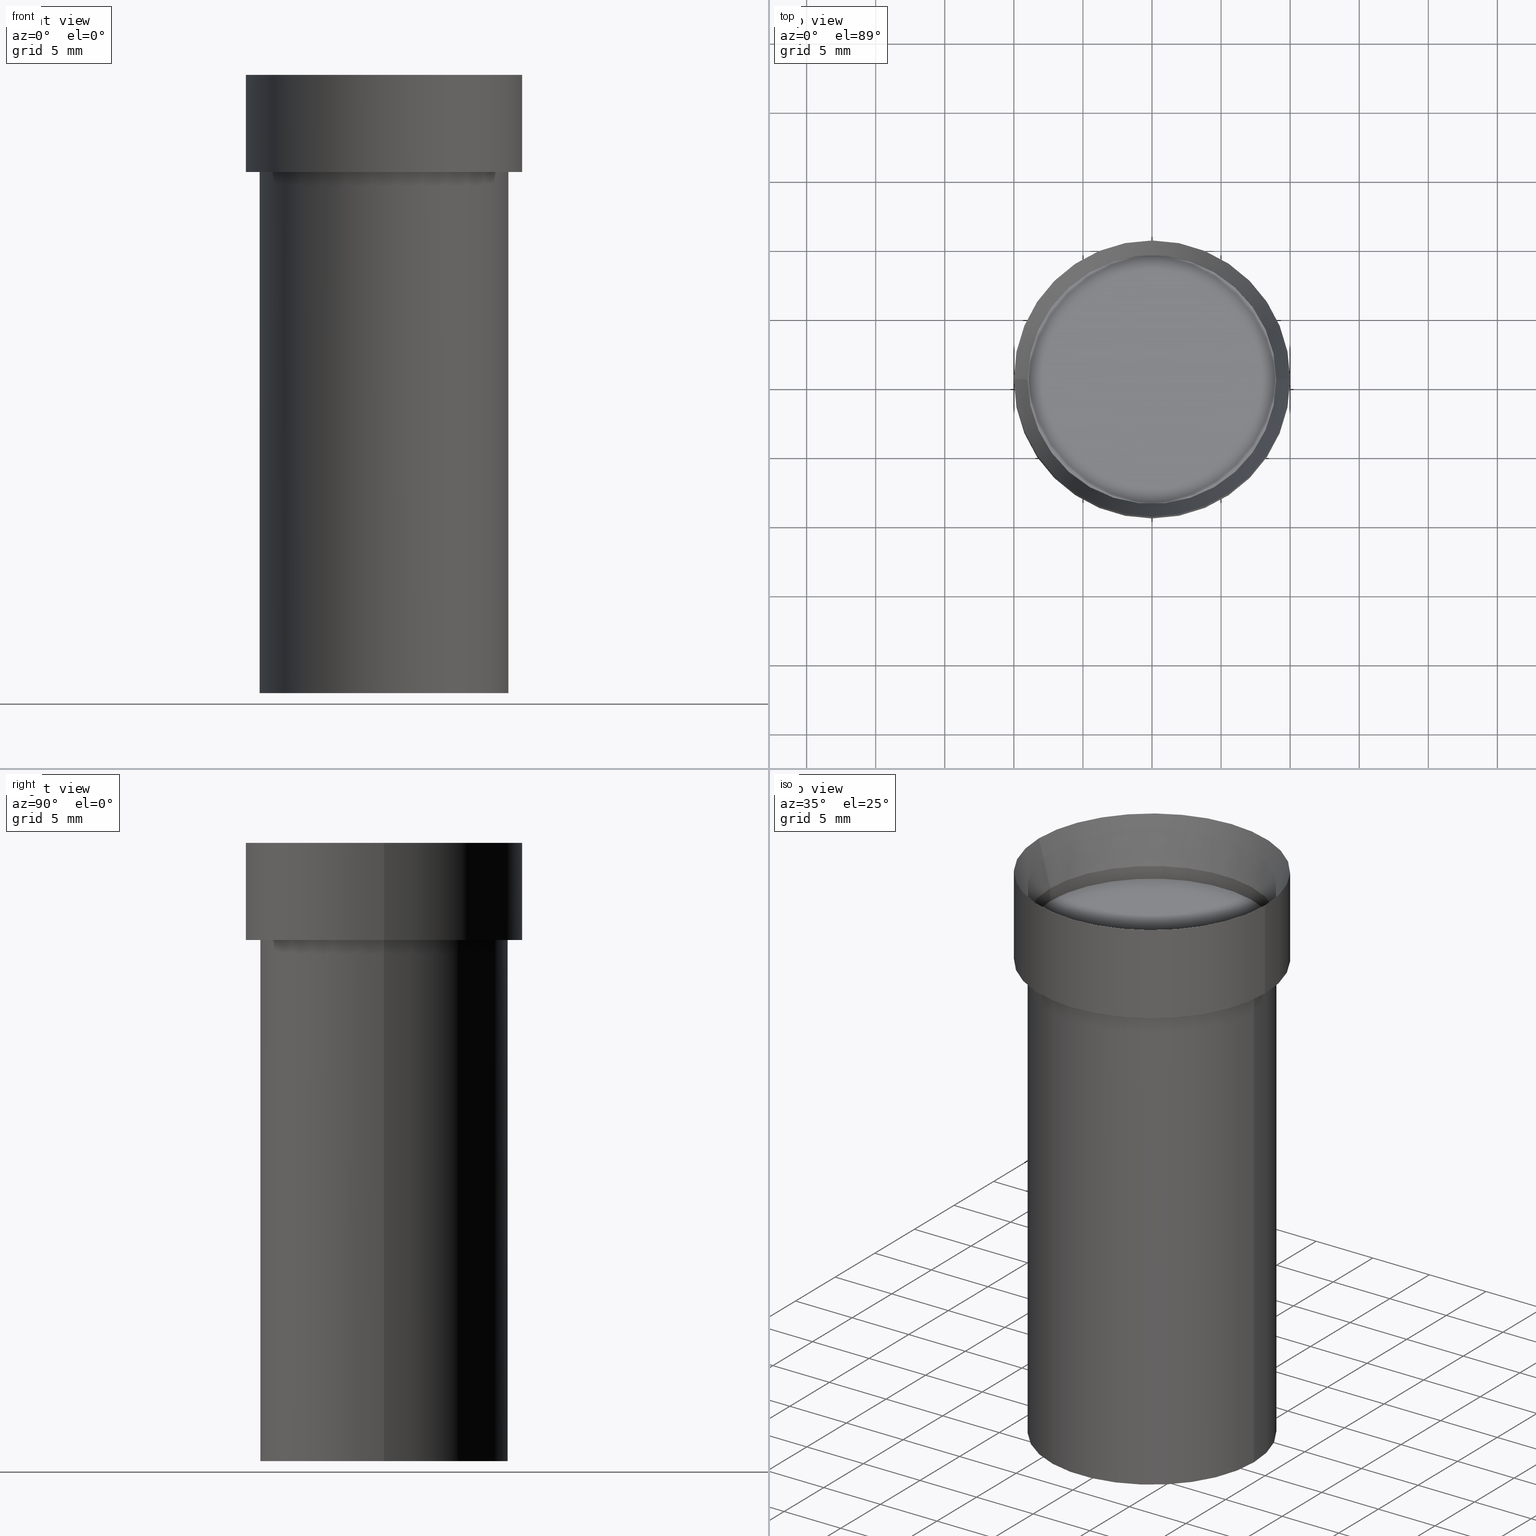
[diagram: canonical four-view strip — front | top / right | iso, engineering-drawing reading convention]
A machine part, canonical four-view strip (front | top / right | iso — engineering-drawing reading convention). The complete STEP part file that produces these views, byte-faithful:
ISO-10303-21;
HEADER;
FILE_DESCRIPTION (( 'STEP AP203' ),
    '1' );
FILE_NAME ('43928.STEP',
    '2024-03-12T19:20:00',
    ( '' ),
    ( '' ),
    'SwSTEP 2.0',
    'SolidWorks 2023',
    '' );
FILE_SCHEMA (( 'CONFIG_CONTROL_DESIGN' ));
ENDSEC;

DATA;
#1 = DIRECTION ( 'NONE',  ( 2.445468806185136597E-29, -3.491481338843145583E-15, -1.000000000000000000 ) ) ;
#2 = DIRECTION ( 'NONE',  ( 1.000000000000000000, -6.982962677686265922E-15, 4.876176775795935793E-29 ) ) ;
#3 = ADVANCED_FACE ( 'NONE', ( #232 ), #231, .T. ) ;
#4 = FACE_OUTER_BOUND ( 'NONE', #432, .T. ) ;
#5 = DIRECTION ( 'NONE',  ( 2.445468806185136597E-29, -3.491481338843145583E-15, -1.000000000000000000 ) ) ;
#6 = DIRECTION ( 'NONE',  ( 2.445468806185136877E-29, -3.491481338843145188E-15, -1.000000000000000000 ) ) ;
#7 = AXIS2_PLACEMENT_3D ( 'NONE', #323, #282, #431 ) ;
#8 = VECTOR ( 'NONE', #206, 39.37007874015748854 ) ;
#9 = ORIENTED_EDGE ( 'NONE', *, *, #240, .T. ) ;
#10 = CARTESIAN_POINT ( 'NONE',  ( -0.3936999999999999389, 3.711672783926467705E-15, 0.2618561992778351555 ) ) ;
#11 = CARTESIAN_POINT ( 'NONE',  ( -1.841438011057409467E-30, 2.629085448148890871E-16, 0.07530000000000006133 ) ) ;
#12 = EDGE_CURVE ( 'NONE', #397, #268, #452, .T. ) ;
#13 = ORIENTED_EDGE ( 'NONE', *, *, #266, .T. ) ;
#14 = AXIS2_PLACEMENT_3D ( 'NONE', #458, #419, #101 ) ;
#15 = AXIS2_PLACEMENT_3D ( 'NONE', #82, #5, #352 ) ;
#16 = EDGE_LOOP ( 'NONE', ( #79, #155, #466, #400 ) ) ;
#17 = DIRECTION ( 'NONE',  ( 1.000000000000000000, -6.982962677686266711E-15, 0.000000000000000000 ) ) ;
#18 = CIRCLE ( 'NONE', #15, 0.3937000000000000499 ) ;
#19 = CALENDAR_DATE ( 2024, 12, 3 ) ;
#20 = CARTESIAN_POINT ( 'NONE',  ( 2.644447966039789453E-15, 0.3787000000000000366, -1.429674279493083145E-15 ) ) ;
#21 = DIRECTION ( 'NONE',  ( -1.000000000000000000, 6.982962677686266711E-15, -4.876176775795935793E-29 ) ) ;
#22 = DIRECTION ( 'NONE',  ( 2.445468806185136597E-29, -3.491481338843145583E-15, -1.000000000000000000 ) ) ;
#23 = AXIS2_PLACEMENT_3D ( 'NONE', #245, #424, #172 ) ;
#24 = AXIS2_PLACEMENT_3D ( 'NONE', #234, #391, #146 ) ;
#25 = CYLINDRICAL_SURFACE ( 'NONE', #180, 0.3543499999999999983 ) ;
#26 = LINE ( 'NONE', #67, #31 ) ;
#27 = ADVANCED_FACE ( 'NONE', ( #94 ), #372, .T. ) ;
#28 = DIRECTION ( 'NONE',  ( -2.445468806185136597E-29, 3.491481338843145583E-15, 1.000000000000000000 ) ) ;
#29 = LINE ( 'NONE', #173, #140 ) ;
#30 = ORIENTED_EDGE ( 'NONE', *, *, #235, .T. ) ;
#31 = VECTOR ( 'NONE', #171, 39.37007874015748143 ) ;
#32 = LINE ( 'NONE', #464, #203 ) ;
#33 = APPROVAL_PERSON_ORGANIZATION ( #249, #463, #47 ) ;
#34 = ADVANCED_FACE ( 'NONE', ( #115 ), #392, .T. ) ;
#35 = VERTEX_POINT ( 'NONE', #238 ) ;
#36 = EDGE_CURVE ( 'NONE', #222, #124, #26, .T. ) ;
#37 = FACE_OUTER_BOUND ( 'NONE', #259, .T. ) ;
#38 = DIRECTION ( 'NONE',  ( 2.445468806185136597E-29, -3.491481338843145583E-15, -1.000000000000000000 ) ) ;
#39 = DIRECTION ( 'NONE',  ( -1.000000000000000000, 6.982962677686266711E-15, 0.000000000000000000 ) ) ;
#40 = VERTEX_POINT ( 'NONE', #430 ) ;
#41 = ORIENTED_EDGE ( 'NONE', *, *, #393, .T. ) ;
#42 = CARTESIAN_POINT ( 'NONE',  ( -1.829210667026483904E-30, 2.611628041454674849E-16, 0.07480000000000006088 ) ) ;
#43 = ORIENTED_EDGE ( 'NONE', *, *, #450, .T. ) ;
#44 = DIRECTION ( 'NONE',  ( -2.445468806185136597E-29, 3.491481338843145583E-15, 1.000000000000000000 ) ) ;
#45 = ORIENTED_EDGE ( 'NONE', *, *, #223, .T. ) ;
#46 = ORIENTED_EDGE ( 'NONE', *, *, #235, .F. ) ;
#47 = APPROVAL_ROLE ( '' ) ;
#48 = CARTESIAN_POINT ( 'NONE',  ( -6.403611670401447787E-30, 9.142660332389533129E-16, 0.2618561992778351555 ) ) ;
#49 = VECTOR ( 'NONE', #364, 39.37007874015748854 ) ;
#50 = EDGE_CURVE ( 'NONE', #209, #52, #127, .T. ) ;
#51 = CONICAL_SURFACE ( 'NONE', #24, 0.3787000000000000366, 0.7853981633974547183 ) ;
#52 = VERTEX_POINT ( 'NONE', #196 ) ;
#53 = CC_DESIGN_PERSON_AND_ORGANIZATION_ASSIGNMENT ( #106, #118, ( #444 ) ) ;
#54 = PERSON_AND_ORGANIZATION ( #314, #128 ) ;
#55 = ORIENTED_EDGE ( 'NONE', *, *, #207, .F. ) ;
#56 = APPROVAL_STATUS ( 'not_yet_approved' ) ;
#57 = PERSON_AND_ORGANIZATION_ROLE ( 'creator' ) ;
#58 = CARTESIAN_POINT ( 'NONE',  ( -2.812289127112907395E-30, 4.015203539669618446E-16, 0.1150000000000000189 ) ) ;
#59 = AXIS2_PLACEMENT_3D ( 'NONE', #312, #142, #143 ) ;
#60 = PERSON_AND_ORGANIZATION ( #314, #128 ) ;
#61 = DIRECTION ( 'NONE',  ( 2.445468806185136597E-29, -3.491481338843145583E-15, -1.000000000000000000 ) ) ;
#62 = CARTESIAN_POINT ( 'NONE',  ( 0.000000000000000000, 0.000000000000000000, 0.000000000000000000 ) ) ;
#63 = ORIENTED_EDGE ( 'NONE', *, *, #276, .T. ) ;
#64 = AXIS2_PLACEMENT_3D ( 'NONE', #342, #22, #137 ) ;
#65 = AXIS2_PLACEMENT_3D ( 'NONE', #355, #38, #112 ) ;
#66 = CYLINDRICAL_SURFACE ( 'NONE', #278, 0.3543499999999999983 ) ;
#67 = CARTESIAN_POINT ( 'NONE',  ( 0.3543499999999999983, -2.431017465510342392E-15, 1.712721831774753992E-29 ) ) ;
#68 = ORIENTED_EDGE ( 'NONE', *, *, #12, .T. ) ;
#69 = DIRECTION ( 'NONE',  ( 0.2588190451025211836, 1.565188264969622559E-15, 0.9659258262890679791 ) ) ;
#70 = CARTESIAN_POINT ( 'NONE',  ( -2.812289127112907395E-30, 4.015203539669618446E-16, 0.1150000000000000189 ) ) ;
#71 = PRODUCT_DEFINITION_SHAPE ( 'NONE', 'NONE',  #302 ) ;
#72 = CARTESIAN_POINT ( 'NONE',  ( 3.668203209277704895E-29, -5.237222008264718177E-15, -1.500000000000000222 ) ) ;
#73 = EDGE_CURVE ( 'NONE', #139, #404, #277, .T. ) ;
#74 = VERTEX_POINT ( 'NONE', #385 ) ;
#75 = AXIS2_PLACEMENT_3D ( 'NONE', #62, #376, #263 ) ;
#76 = CARTESIAN_POINT ( 'NONE',  ( 5.255326964810316247E-45, -7.503214099785695689E-31, -2.149005929463676427E-16 ) ) ;
#77 = ORIENTED_EDGE ( 'NONE', *, *, #266, .F. ) ;
#78 = CYLINDRICAL_SURFACE ( 'NONE', #65, 0.3936999999999999389 ) ;
#79 = ORIENTED_EDGE ( 'NONE', *, *, #50, .T. ) ;
#80 = CARTESIAN_POINT ( 'NONE',  ( -0.3936999999999999389, 3.711672783926467705E-15, 0.2618561992778351555 ) ) ;
#81 = EDGE_CURVE ( 'NONE', #222, #139, #337, .T. ) ;
#82 = CARTESIAN_POINT ( 'NONE',  ( 3.668203209277705088E-31, -5.237222008264718399E-17, -0.01499999999999999944 ) ) ;
#83 = CALENDAR_DATE ( 2024, 12, 3 ) ;
#84 = EDGE_CURVE ( 'NONE', #437, #295, #29, .T. ) ;
#85 = AXIS2_PLACEMENT_3D ( 'NONE', #211, #28, #386 ) ;
#86 = ORIENTED_EDGE ( 'NONE', *, *, #393, .F. ) ;
#87 = DIRECTION ( 'NONE',  ( -1.000000000000000000, 6.982962677686265922E-15, -4.876176775795935793E-29 ) ) ;
#88 = ORIENTED_EDGE ( 'NONE', *, *, #224, .F. ) ;
#89 = ADVANCED_FACE ( 'NONE', ( #190 ), #25, .T. ) ;
#90 = CC_DESIGN_PERSON_AND_ORGANIZATION_ASSIGNMENT ( #160, #304, ( #275 ) ) ;
#91 = CIRCLE ( 'NONE', #408, 0.3543500000000000538 ) ;
#92 = DATE_TIME_ROLE ( 'creation_date' ) ;
#93 = CARTESIAN_POINT ( 'NONE',  ( 0.3543499999999999983, -4.919047067569968280E-15, -1.500000000000000222 ) ) ;
#94 = FACE_OUTER_BOUND ( 'NONE', #288, .T. ) ;
#95 = ORIENTED_EDGE ( 'NONE', *, *, #81, .T. ) ;
#96 = DATE_AND_TIME ( #226, #369 ) ;
#97 = APPROVAL ( #365, 'UNSPECIFIED' ) ;
#98 = DESIGN_CONTEXT ( 'detailed design', #262, 'design' ) ;
#99 = CONICAL_SURFACE ( 'NONE', #85, 0.3543500000000000538, 0.7853981633974824739 ) ;
#100 = DATE_AND_TIME ( #19, #425 ) ;
#101 = DIRECTION ( 'NONE',  ( -1.000000000000000000, 6.982962677686266711E-15, 0.000000000000000000 ) ) ;
#102 = ORIENTED_EDGE ( 'NONE', *, *, #12, .F. ) ;
#103 = FACE_OUTER_BOUND ( 'NONE', #421, .T. ) ;
#104 = DIRECTION ( 'NONE',  ( -2.438088387897960049E-29, 3.491481338843145188E-15, 1.000000000000000000 ) ) ;
#105 = AXIS2_PLACEMENT_3D ( 'NONE', #438, #109, #317 ) ;
#106 = PERSON_AND_ORGANIZATION ( #314, #128 ) ;
#107 = CARTESIAN_POINT ( 'NONE',  ( -0.3787000000000000366, 2.644447966039788269E-15, -2.149005929463861069E-16 ) ) ;
#108 = CARTESIAN_POINT ( 'NONE',  ( -0.3543499999999999983, 2.474412824838128694E-15, -1.727873240503289749E-29 ) ) ;
#109 = DIRECTION ( 'NONE',  ( 2.445468806185136597E-29, -3.491481338843145583E-15, -1.000000000000000000 ) ) ;
#110 = ORIENTED_EDGE ( 'NONE', *, *, #149, .T. ) ;
#111 = DIRECTION ( 'NONE',  ( 2.445468806185136597E-29, -3.491481338843145583E-15, -1.000000000000000000 ) ) ;
#112 = DIRECTION ( 'NONE',  ( -1.000000000000000000, 6.982962677686266711E-15, -4.876176775795935793E-29 ) ) ;
#113 = AXIS2_PLACEMENT_3D ( 'NONE', #58, #305, #132 ) ;
#114 = LINE ( 'NONE', #447, #313 ) ;
#115 = FACE_OUTER_BOUND ( 'NONE', #371, .T. ) ;
#116 = CARTESIAN_POINT ( 'NONE',  ( 5.255326964810316247E-45, -7.503214099785695689E-31, -2.149005929463676427E-16 ) ) ;
#117 = FACE_OUTER_BOUND ( 'NONE', #122, .T. ) ;
#118 = PERSON_AND_ORGANIZATION_ROLE ( 'classification_officer' ) ;
#119 = DIRECTION ( 'NONE',  ( 1.000000000000000000, -6.982962677686266711E-15, 0.000000000000000000 ) ) ;
#120 = SHAPE_DEFINITION_REPRESENTATION ( #71, #349 ) ;
#121 = CONICAL_SURFACE ( 'NONE', #105, 0.3787000000000000366, 0.7853981633974547183 ) ;
#122 = EDGE_LOOP ( 'NONE', ( #86, #255, #9, #215 ) ) ;
#123 = ORIENTED_EDGE ( 'NONE', *, *, #149, .F. ) ;
#124 = VERTEX_POINT ( 'NONE', #381 ) ;
#125 = UNCERTAINTY_MEASURE_WITH_UNIT (LENGTH_MEASURE( 1.000000000000000082E-05 ), #411, 'distance_accuracy_value', 'NONE');
#126 =( NAMED_UNIT ( * ) PLANE_ANGLE_UNIT ( ) SI_UNIT ( $, .RADIAN. ) );
#127 = CIRCLE ( 'NONE', #286, 0.3543499999999999983 ) ;
#128 = ORGANIZATION ( 'UNSPECIFIED', 'UNSPECIFIED', '' ) ;
#129 = ORIENTED_EDGE ( 'NONE', *, *, #207, .T. ) ;
#130 = APPROVAL ( #56, 'UNSPECIFIED' ) ;
#131 =( NAMED_UNIT ( * ) SI_UNIT ( $, .STERADIAN. ) SOLID_ANGLE_UNIT ( ) );
#132 = DIRECTION ( 'NONE',  ( -1.000000000000000000, 6.982962677686266711E-15, 0.000000000000000000 ) ) ;
#133 = DIRECTION ( 'NONE',  ( 1.000000000000000000, 0.000000000000000000, 0.000000000000000000 ) ) ;
#134 = DIRECTION ( 'NONE',  ( 2.445468806185136597E-29, -3.491481338843145583E-15, -1.000000000000000000 ) ) ;
#135 = AXIS2_PLACEMENT_3D ( 'NONE', #318, #285, #2 ) ;
#136 = CONICAL_SURFACE ( 'NONE', #389, 0.3936999999999999389, 0.2617993877991499074 ) ;
#137 = DIRECTION ( 'NONE',  ( -1.000000000000000000, 6.982962677686266711E-15, 0.000000000000000000 ) ) ;
#138 = CARTESIAN_POINT ( 'NONE',  ( -0.3936999999999999389, 2.749192406205082822E-15, -1.919750796630859611E-29 ) ) ;
#139 = VERTEX_POINT ( 'NONE', #375 ) ;
#140 = VECTOR ( 'NONE', #465, 39.37007874015748143 ) ;
#141 = LOCAL_TIME ( 15, 20, 0.000000000000000000, #327 ) ;
#142 = DIRECTION ( 'NONE',  ( -2.445468806185136597E-29, 3.491481338843145583E-15, 1.000000000000000000 ) ) ;
#143 = DIRECTION ( 'NONE',  ( 1.000000000000000000, -6.982962677686266711E-15, 0.000000000000000000 ) ) ;
#144 = ORIENTED_EDGE ( 'NONE', *, *, #199, .T. ) ;
#145 = DIRECTION ( 'NONE',  ( -0.7071067811865521247, 2.468850131082304787E-15, -0.7071067811865430208 ) ) ;
#146 = DIRECTION ( 'NONE',  ( -1.000000000000000000, 6.982962677686266711E-15, -4.877404199330184597E-29 ) ) ;
#147 = AXIS2_PLACEMENT_3D ( 'NONE', #42, #174, #177 ) ;
#148 = DIRECTION ( 'NONE',  ( 2.445468806185136597E-29, -3.491481338843145583E-15, -1.000000000000000000 ) ) ;
#149 = EDGE_CURVE ( 'NONE', #139, #222, #213, .T. ) ;
#150 = DIRECTION ( 'NONE',  ( -1.000000000000000000, 6.982962677686266711E-15, -4.877404199330184597E-29 ) ) ;
#151 = DIRECTION ( 'NONE',  ( -1.000000000000000000, 6.982962677686265922E-15, 0.000000000000000000 ) ) ;
#152 = DATE_TIME_ROLE ( 'classification_date' ) ;
#153 = ORIENTED_EDGE ( 'NONE', *, *, #329, .F. ) ;
#154 = ADVANCED_FACE ( 'NONE', ( #338 ), #456, .T. ) ;
#155 = ORIENTED_EDGE ( 'NONE', *, *, #410, .T. ) ;
#156 = CIRCLE ( 'NONE', #23, 0.3936999999999999389 ) ;
#157 = ORIENTED_EDGE ( 'NONE', *, *, #324, .T. ) ;
#158 = ORIENTED_EDGE ( 'NONE', *, *, #410, .F. ) ;
#159 = CARTESIAN_POINT ( 'NONE',  ( -0.3543500000000000538, 2.737321369653018176E-15, 0.07530000000000006133 ) ) ;
#160 = PERSON_AND_ORGANIZATION ( #314, #128 ) ;
#161 = CIRCLE ( 'NONE', #414, 0.3543499999999999983 ) ;
#162 = APPROVAL_PERSON_ORGANIZATION ( #54, #130, #415 ) ;
#163 = APPLICATION_PROTOCOL_DEFINITION ( 'international standard', 'config_control_design', 1994, #183 ) ;
#164 = CARTESIAN_POINT ( 'NONE',  ( 0.000000000000000000, 0.000000000000000000, 0.000000000000000000 ) ) ;
#165 = EDGE_CURVE ( 'NONE', #427, #298, #168, .T. ) ;
#166 = ADVANCED_FACE ( 'NONE', ( #274 ), #412, .F. ) ;
#167 = ADVANCED_FACE ( 'NONE', ( #420 ), #271, .T. ) ;
#168 = LINE ( 'NONE', #138, #453 ) ;
#169 = AXIS2_PLACEMENT_3D ( 'NONE', #76, #205, #433 ) ;
#170 = ORIENTED_EDGE ( 'NONE', *, *, #329, .T. ) ;
#171 = DIRECTION ( 'NONE',  ( 2.445468806185136877E-29, -3.491481338843145188E-15, -1.000000000000000000 ) ) ;
#172 = DIRECTION ( 'NONE',  ( -1.000000000000000000, 6.982962677686266711E-15, 0.000000000000000000 ) ) ;
#173 = CARTESIAN_POINT ( 'NONE',  ( 0.3936999999999999389, -2.700978061722651647E-15, 1.902916848228363047E-29 ) ) ;
#174 = DIRECTION ( 'NONE',  ( 2.445468806185136597E-29, -3.491481338843145583E-15, -1.000000000000000000 ) ) ;
#175 = CARTESIAN_POINT ( 'NONE',  ( 0.3936999999999999389, -1.834926372966129509E-15, 0.2618561992778351555 ) ) ;
#176 = CARTESIAN_POINT ( 'NONE',  ( -0.3543499999999999983, -2.762809183426589877E-15, -1.500000000000000222 ) ) ;
#177 = DIRECTION ( 'NONE',  ( -1.000000000000000000, 6.982962677686265922E-15, 0.000000000000000000 ) ) ;
#178 = ORIENTED_EDGE ( 'NONE', *, *, #276, .F. ) ;
#179 = CLOSED_SHELL ( 'NONE', ( #167, #290, #359, #194, #380, #319, #166, #246, #27, #154, #417, #451 ) ) ;
#180 = AXIS2_PLACEMENT_3D ( 'NONE', #192, #379, #237 ) ;
#181 = APPROVAL_PERSON_ORGANIZATION ( #299, #97, #448 ) ;
#182 = CARTESIAN_POINT ( 'NONE',  ( -0.3937000000000000499, 2.696820186122435743E-15, -0.01499999999999999944 ) ) ;
#183 = APPLICATION_CONTEXT ( 'configuration controlled 3d designs of mechanical parts and assemblies' ) ;
#184 = VECTOR ( 'NONE', #242, 39.37007874015748143 ) ;
#185 = DIRECTION ( 'NONE',  ( -2.445468806185136597E-29, 3.491481338843145583E-15, 1.000000000000000000 ) ) ;
#186 = ORIENTED_EDGE ( 'NONE', *, *, #208, .F. ) ;
#187 = MECHANICAL_CONTEXT ( 'NONE', #183, 'mechanical' ) ;
#188 = COORDINATED_UNIVERSAL_TIME_OFFSET ( 5, 0, .BEHIND. ) ;
#189 = VECTOR ( 'NONE', #145, 39.37007874015748143 ) ;
#190 = FACE_OUTER_BOUND ( 'NONE', #16, .T. ) ;
#191 = CC_DESIGN_PERSON_AND_ORGANIZATION_ASSIGNMENT ( #409, #57, ( #302 ) ) ;
#192 = CARTESIAN_POINT ( 'NONE',  ( 0.000000000000000000, 0.000000000000000000, 0.000000000000000000 ) ) ;
#193 = AXIS2_PLACEMENT_3D ( 'NONE', #418, #61, #21 ) ;
#194 = ADVANCED_FACE ( 'NONE', ( #103 ), #66, .F. ) ;
#195 = DIRECTION ( 'NONE',  ( -1.000000000000000000, 6.982962677686266711E-15, -4.876176775795935793E-29 ) ) ;
#196 = CARTESIAN_POINT ( 'NONE',  ( 0.3543499999999999983, -4.919047067569968280E-15, 0.07479999999999997762 ) ) ;
#197 = EDGE_LOOP ( 'NONE', ( #387, #123, #363, #328 ) ) ;
#198 = DIRECTION ( 'NONE',  ( 2.445468806185136597E-29, -3.491481338843145583E-15, -1.000000000000000000 ) ) ;
#199 = EDGE_CURVE ( 'NONE', #124, #404, #345, .T. ) ;
#200 = DIRECTION ( 'NONE',  ( 2.445468806185136597E-29, -3.491481338843145583E-15, -1.000000000000000000 ) ) ;
#201 = DIRECTION ( 'NONE',  ( 2.445468806185136597E-29, -3.491481338843145583E-15, -1.000000000000000000 ) ) ;
#202 = EDGE_LOOP ( 'NONE', ( #446, #41, #331, #462 ) ) ;
#203 = VECTOR ( 'NONE', #69, 39.37007874015748854 ) ;
#204 = LOCAL_TIME ( 15, 20, 0.000000000000000000, #398 ) ;
#205 = DIRECTION ( 'NONE',  ( 2.445468806185136597E-29, -3.491481338843145583E-15, -1.000000000000000000 ) ) ;
#206 = DIRECTION ( 'NONE',  ( -0.2588190451025211836, 5.211531920934547886E-15, 0.9659258262890679791 ) ) ;
#207 = EDGE_CURVE ( 'NONE', #437, #427, #306, .T. ) ;
#208 = EDGE_CURVE ( 'NONE', #52, #209, #261, .T. ) ;
#209 = VERTEX_POINT ( 'NONE', #279 ) ;
#210 = ORIENTED_EDGE ( 'NONE', *, *, #208, .T. ) ;
#211 = CARTESIAN_POINT ( 'NONE',  ( -1.841438011057409467E-30, 2.629085448148890871E-16, 0.07530000000000006133 ) ) ;
#212 = APPROVAL_STATUS ( 'not_yet_approved' ) ;
#213 = CIRCLE ( 'NONE', #113, 0.3543499999999999428 ) ;
#214 = EDGE_CURVE ( 'NONE', #404, #124, #91, .T. ) ;
#215 = ORIENTED_EDGE ( 'NONE', *, *, #214, .F. ) ;
#216 = CALENDAR_DATE ( 2024, 12, 3 ) ;
#217 = ORIENTED_EDGE ( 'NONE', *, *, #227, .F. ) ;
#218 = FACE_OUTER_BOUND ( 'NONE', #325, .T. ) ;
#219 = ORIENTED_EDGE ( 'NONE', *, *, #165, .T. ) ;
#220 = AXIS2_PLACEMENT_3D ( 'NONE', #366, #449, #87 ) ;
#221 = CC_DESIGN_SECURITY_CLASSIFICATION ( #444, ( #239 ) ) ;
#222 = VERTEX_POINT ( 'NONE', #354 ) ;
#223 = EDGE_CURVE ( 'NONE', #209, #268, #384, .T. ) ;
#224 = EDGE_CURVE ( 'NONE', #222, #437, #32, .T. ) ;
#225 = ORIENTED_EDGE ( 'NONE', *, *, #50, .F. ) ;
#226 = CALENDAR_DATE ( 2024, 12, 3 ) ;
#227 = EDGE_CURVE ( 'NONE', #236, #40, #361, .T. ) ;
#228 = APPROVAL_DATE_TIME ( #100, #130 ) ;
#229 = DIRECTION ( 'NONE',  ( -1.000000000000000000, 6.982962677686266711E-15, -4.876176775795935793E-29 ) ) ;
#230 = AXIS2_PLACEMENT_3D ( 'NONE', #70, #200, #351 ) ;
#231 = CYLINDRICAL_SURFACE ( 'NONE', #75, 0.3543499999999999983 ) ;
#232 = FACE_OUTER_BOUND ( 'NONE', #348, .T. ) ;
#233 = PERSON_AND_ORGANIZATION ( #314, #128 ) ;
#234 = CARTESIAN_POINT ( 'NONE',  ( 5.255326964810316247E-45, -7.503214099785695689E-31, -2.149005929463676427E-16 ) ) ;
#235 = EDGE_CURVE ( 'NONE', #298, #295, #18, .T. ) ;
#236 = VERTEX_POINT ( 'NONE', #320 ) ;
#237 = DIRECTION ( 'NONE',  ( -1.000000000000000000, 6.982962677686266711E-15, -4.876176775795935793E-29 ) ) ;
#238 = CARTESIAN_POINT ( 'NONE',  ( -0.3787000000000000366, 2.644447966039788269E-15, -2.149005929463861069E-16 ) ) ;
#239 = PRODUCT_DEFINITION_FORMATION_WITH_SPECIFIED_SOURCE ( 'ANY', '', #275, .NOT_KNOWN. ) ;
#240 = EDGE_CURVE ( 'NONE', #236, #124, #284, .T. ) ;
#241 = FACE_OUTER_BOUND ( 'NONE', #326, .T. ) ;
#242 = DIRECTION ( 'NONE',  ( 2.445468806185136877E-29, -3.491481338843145188E-15, -1.000000000000000000 ) ) ;
#243 = ORIENTED_EDGE ( 'NONE', *, *, #36, .T. ) ;
#244 = CARTESIAN_POINT ( 'NONE',  ( -0.3543499999999999983, 2.474412824838128694E-15, -1.727873240503289749E-29 ) ) ;
#245 = CARTESIAN_POINT ( 'NONE',  ( -6.403611670401447787E-30, 9.142660332389533129E-16, 0.2618561992778351555 ) ) ;
#246 = ADVANCED_FACE ( 'NONE', ( #117 ), #99, .F. ) ;
#247 = AXIS2_PLACEMENT_3D ( 'NONE', #346, #104, #426 ) ;
#248 = AXIS2_PLACEMENT_3D ( 'NONE', #315, #148, #151 ) ;
#249 = PERSON_AND_ORGANIZATION ( #314, #128 ) ;
#250 = LINE ( 'NONE', #107, #189 ) ;
#251 = DIRECTION ( 'NONE',  ( 2.445468806185136597E-29, -3.491481338843145583E-15, -1.000000000000000000 ) ) ;
#252 = CARTESIAN_POINT ( 'NONE',  ( 0.3937000000000000499, -2.753350281805299909E-15, -0.01499999999999999944 ) ) ;
#253 = EDGE_CURVE ( 'NONE', #40, #236, #459, .T. ) ;
#254 = EDGE_LOOP ( 'NONE', ( #170, #303 ) ) ;
#255 = ORIENTED_EDGE ( 'NONE', *, *, #253, .T. ) ;
#256 = DATE_AND_TIME ( #83, #204 ) ;
#257 = CONICAL_SURFACE ( 'NONE', #59, 0.3936999999999999389, 0.2617993877991499074 ) ;
#258 = DIRECTION ( 'NONE',  ( 0.7071067811865521247, -7.319954787623271823E-15, -0.7071067811865430208 ) ) ;
#259 = EDGE_LOOP ( 'NONE', ( #357, #110, #283, #316 ) ) ;
#260 = ORIENTED_EDGE ( 'NONE', *, *, #428, .F. ) ;
#261 = CIRCLE ( 'NONE', #301, 0.3543499999999999983 ) ;
#262 = APPLICATION_CONTEXT ( 'configuration controlled 3d designs of mechanical parts and assemblies' ) ;
#263 = DIRECTION ( 'NONE',  ( -1.000000000000000000, 6.982962677686266711E-15, -4.876176775795935793E-29 ) ) ;
#264 = ORIENTED_EDGE ( 'NONE', *, *, #81, .F. ) ;
#265 = ORIENTED_EDGE ( 'NONE', *, *, #343, .T. ) ;
#266 = EDGE_CURVE ( 'NONE', #35, #298, #250, .T. ) ;
#267 = DIRECTION ( 'NONE',  ( 2.445468806185136877E-29, -3.491481338843145188E-15, -1.000000000000000000 ) ) ;
#268 = VERTEX_POINT ( 'NONE', #176 ) ;
#269 = CALENDAR_DATE ( 2024, 12, 3 ) ;
#270 = VECTOR ( 'NONE', #399, 39.37007874015748143 ) ;
#271 = CYLINDRICAL_SURFACE ( 'NONE', #193, 0.3936999999999999389 ) ;
#272 = MANIFOLD_SOLID_BREP ( 'Body-Move/Copy2[1]', #413 ) ;
#273 = MANIFOLD_SOLID_BREP ( 'Body-Move/Copy2[2]', #179 ) ;
#274 = FACE_OUTER_BOUND ( 'NONE', #197, .T. ) ;
#275 = PRODUCT ( '43928', '43928', '', ( #187 ) ) ;
#276 = EDGE_CURVE ( 'NONE', #295, #298, #353, .T. ) ;
#277 = LINE ( 'NONE', #108, #184 ) ;
#278 = AXIS2_PLACEMENT_3D ( 'NONE', #307, #460, #195 ) ;
#279 = CARTESIAN_POINT ( 'NONE',  ( -0.3543499999999999983, 2.735575628983595883E-15, 0.07479999999999997762 ) ) ;
#280 = DIRECTION ( 'NONE',  ( 2.445468806185136597E-29, -3.491481338843145583E-15, -1.000000000000000000 ) ) ;
#281 = CC_DESIGN_DATE_AND_TIME_ASSIGNMENT ( #332, #92, ( #302 ) ) ;
#282 = DIRECTION ( 'NONE',  ( 2.445468806185136597E-29, -3.491481338843145583E-15, -1.000000000000000000 ) ) ;
#283 = ORIENTED_EDGE ( 'NONE', *, *, #224, .T. ) ;
#284 = LINE ( 'NONE', #350, #401 ) ;
#285 = DIRECTION ( 'NONE',  ( -2.438088387897960049E-29, 3.491481338843145188E-15, 1.000000000000000000 ) ) ;
#286 = AXIS2_PLACEMENT_3D ( 'NONE', #309, #280, #347 ) ;
#287 = CARTESIAN_POINT ( 'NONE',  ( 3.668203209277705088E-31, -5.237222008264718399E-17, -0.01499999999999999944 ) ) ;
#288 = EDGE_LOOP ( 'NONE', ( #217, #407 ) ) ;
#289 = LINE ( 'NONE', #440, #270 ) ;
#290 = ADVANCED_FACE ( 'NONE', ( #241 ), #121, .F. ) ;
#291 = EDGE_LOOP ( 'NONE', ( #157, #68 ) ) ;
#292 = DATE_AND_TIME ( #216, #141 ) ;
#293 = CARTESIAN_POINT ( 'NONE',  ( -1.841438011057409467E-30, 2.629085448148890871E-16, 0.07530000000000006133 ) ) ;
#294 = AXIS2_PLACEMENT_3D ( 'NONE', #20, #308, #461 ) ;
#295 = VERTEX_POINT ( 'NONE', #252 ) ;
#296 = ORIENTED_EDGE ( 'NONE', *, *, #343, .F. ) ;
#297 = EDGE_CURVE ( 'NONE', #427, #437, #156, .T. ) ;
#298 = VERTEX_POINT ( 'NONE', #182 ) ;
#299 = PERSON_AND_ORGANIZATION ( #314, #128 ) ;
#300 = APPLICATION_PROTOCOL_DEFINITION ( 'international standard', 'config_control_design', 1994, #262 ) ;
#301 = AXIS2_PLACEMENT_3D ( 'NONE', #356, #1, #39 ) ;
#302 = PRODUCT_DEFINITION ( 'UNKNOWN', '', #239, #98 ) ;
#303 = ORIENTED_EDGE ( 'NONE', *, *, #428, .T. ) ;
#304 = PERSON_AND_ORGANIZATION_ROLE ( 'design_owner' ) ;
#305 = DIRECTION ( 'NONE',  ( 2.445468806185136597E-29, -3.491481338843145583E-15, -1.000000000000000000 ) ) ;
#306 = CIRCLE ( 'NONE', #7, 0.3936999999999999389 ) ;
#307 = CARTESIAN_POINT ( 'NONE',  ( 0.000000000000000000, 0.000000000000000000, 0.000000000000000000 ) ) ;
#308 = DIRECTION ( 'NONE',  ( 2.438088387897960049E-29, -3.491481338843145188E-15, -1.000000000000000000 ) ) ;
#309 = CARTESIAN_POINT ( 'NONE',  ( -1.829210667026481802E-30, 2.611628041454672384E-16, 0.07479999999999997762 ) ) ;
#310 = PERSON_AND_ORGANIZATION_ROLE ( 'design_supplier' ) ;
#311 = ORIENTED_EDGE ( 'NONE', *, *, #297, .T. ) ;
#312 = CARTESIAN_POINT ( 'NONE',  ( -6.403611670401447787E-30, 9.142660332389533129E-16, 0.2618561992778351555 ) ) ;
#313 = VECTOR ( 'NONE', #258, 39.37007874015748143 ) ;
#314 = PERSON ( 'UNSPECIFIED', 'UNSPECIFIED', 'UNSPECIFIED', ('UNSPECIFIED'), ('UNSPECIFIED'), ('UNSPECIFIED') ) ;
#315 = CARTESIAN_POINT ( 'NONE',  ( -1.829210667026483904E-30, 2.611628041454674849E-16, 0.07480000000000006088 ) ) ;
#316 = ORIENTED_EDGE ( 'NONE', *, *, #297, .F. ) ;
#317 = DIRECTION ( 'NONE',  ( -1.000000000000000000, 6.982962677686266711E-15, -4.877404199330184597E-29 ) ) ;
#318 = CARTESIAN_POINT ( 'NONE',  ( -1.829210667026483204E-30, 2.611628041454673863E-16, 0.07480000000000003313 ) ) ;
#319 = ADVANCED_FACE ( 'NONE', ( #37 ), #257, .F. ) ;
#320 = CARTESIAN_POINT ( 'NONE',  ( 0.3538500000000000534, -2.210631409688528855E-15, 0.07480000000000006088 ) ) ;
#321 = AXIS2_PLACEMENT_3D ( 'NONE', #287, #111, #396 ) ;
#322 =( GEOMETRIC_REPRESENTATION_CONTEXT ( 3 ) GLOBAL_UNCERTAINTY_ASSIGNED_CONTEXT ( ( #125 ) ) GLOBAL_UNIT_ASSIGNED_CONTEXT ( ( #411, #126, #131 ) ) REPRESENTATION_CONTEXT ( 'NONE', 'WORKASPACE' ) );
#323 = CARTESIAN_POINT ( 'NONE',  ( -6.403611670401447787E-30, 9.142660332389533129E-16, 0.2618561992778351555 ) ) ;
#324 = EDGE_CURVE ( 'NONE', #268, #397, #161, .T. ) ;
#325 = EDGE_LOOP ( 'NONE', ( #95, #43, #55, #88 ) ) ;
#326 = EDGE_LOOP ( 'NONE', ( #260, #265, #63, #77 ) ) ;
#327 = COORDINATED_UNIVERSAL_TIME_OFFSET ( 5, 0, .BEHIND. ) ;
#328 = ORIENTED_EDGE ( 'NONE', *, *, #214, .T. ) ;
#329 = EDGE_CURVE ( 'NONE', #35, #74, #423, .T. ) ;
#330 = FACE_OUTER_BOUND ( 'NONE', #291, .T. ) ;
#331 = ORIENTED_EDGE ( 'NONE', *, *, #199, .F. ) ;
#332 = DATE_AND_TIME ( #269, #362 ) ;
#333 = CARTESIAN_POINT ( 'NONE',  ( -0.3543500000000000538, 2.780716728980804478E-15, 0.07530000000000006133 ) ) ;
#334 = DIRECTION ( 'NONE',  ( 0.000000000000000000, 0.000000000000000000, 1.000000000000000000 ) ) ;
#335 = EDGE_LOOP ( 'NONE', ( #311, #390, #46, #405 ) ) ;
#336 = COORDINATED_UNIVERSAL_TIME_OFFSET ( 5, 0, .BEHIND. ) ;
#337 = CIRCLE ( 'NONE', #230, 0.3543499999999999428 ) ;
#338 = FACE_OUTER_BOUND ( 'NONE', #254, .T. ) ;
#339 = PRODUCT_RELATED_PRODUCT_CATEGORY ( 'detail', '', ( #275 ) ) ;
#340 = CARTESIAN_POINT ( 'NONE',  ( 0.000000000000000000, 0.000000000000000000, 0.000000000000000000 ) ) ;
#341 = FACE_OUTER_BOUND ( 'NONE', #383, .T. ) ;
#342 = CARTESIAN_POINT ( 'NONE',  ( -1.841438011057409467E-30, 2.629085448148890871E-16, 0.07530000000000006133 ) ) ;
#343 = EDGE_CURVE ( 'NONE', #74, #295, #114, .T. ) ;
#344 = CC_DESIGN_PERSON_AND_ORGANIZATION_ASSIGNMENT ( #60, #310, ( #239 ) ) ;
#345 = CIRCLE ( 'NONE', #64, 0.3543500000000000538 ) ;
#346 = CARTESIAN_POINT ( 'NONE',  ( 2.474412824838126328E-15, 0.3543500000000002759, 0.07479999999999872862 ) ) ;
#347 = DIRECTION ( 'NONE',  ( -1.000000000000000000, 6.982962677686266711E-15, 0.000000000000000000 ) ) ;
#348 = EDGE_LOOP ( 'NONE', ( #158, #210, #45, #102 ) ) ;
#349 = ADVANCED_BREP_SHAPE_REPRESENTATION ( '43928', ( #272, #273, #382 ), #322 ) ;
#350 = CARTESIAN_POINT ( 'NONE',  ( 0.3543500000000000538, -2.211504280023240001E-15, 0.07530000000000006133 ) ) ;
#351 = DIRECTION ( 'NONE',  ( -1.000000000000000000, 6.982962677686266711E-15, 0.000000000000000000 ) ) ;
#352 = DIRECTION ( 'NONE',  ( -1.000000000000000000, 6.982962677686265922E-15, 0.000000000000000000 ) ) ;
#353 = CIRCLE ( 'NONE', #321, 0.3937000000000000499 ) ;
#354 = CARTESIAN_POINT ( 'NONE',  ( 0.3543499999999999428, -1.953909421918648105E-15, 0.1150000000000000189 ) ) ;
#355 = CARTESIAN_POINT ( 'NONE',  ( 0.000000000000000000, 0.000000000000000000, 0.000000000000000000 ) ) ;
#356 = CARTESIAN_POINT ( 'NONE',  ( -1.829210667026481802E-30, 2.611628041454672384E-16, 0.07479999999999997762 ) ) ;
#357 = ORIENTED_EDGE ( 'NONE', *, *, #450, .F. ) ;
#358 = LENGTH_MEASURE_WITH_UNIT ( LENGTH_MEASURE( 0.02539999999999999897 ), #439 );
#359 = ADVANCED_FACE ( 'NONE', ( #403 ), #443, .F. ) ;
#360 = DIRECTION ( 'NONE',  ( 0.7071067811865715536, -2.468850131082509496E-15, 0.7071067811865232589 ) ) ;
#361 = CIRCLE ( 'NONE', #147, 0.3538500000000000534 ) ;
#362 = LOCAL_TIME ( 15, 20, 0.000000000000000000, #188 ) ;
#363 = ORIENTED_EDGE ( 'NONE', *, *, #73, .T. ) ;
#364 = DIRECTION ( 'NONE',  ( -0.7071067811865715536, 7.493145998870439357E-15, 0.7071067811865232589 ) ) ;
#365 = APPROVAL_STATUS ( 'not_yet_approved' ) ;
#366 = CARTESIAN_POINT ( 'NONE',  ( 3.576687321579069994E-29, -5.368277968210015545E-15, -1.500000000000000222 ) ) ;
#367 = ORIENTED_EDGE ( 'NONE', *, *, #84, .F. ) ;
#368 = VECTOR ( 'NONE', #6, 39.37007874015748143 ) ;
#369 = LOCAL_TIME ( 15, 20, 0.000000000000000000, #455 ) ;
#370 = LINE ( 'NONE', #333, #49 ) ;
#371 = EDGE_LOOP ( 'NONE', ( #225, #186 ) ) ;
#372 = PLANE ( 'NONE',  #135 ) ;
#373 = ADVANCED_FACE ( 'NONE', ( #330 ), #406, .T. ) ;
#374 = APPROVAL_DATE_TIME ( #96, #97 ) ;
#375 = CARTESIAN_POINT ( 'NONE',  ( -0.3543499999999999428, 3.315500661029671558E-15, 0.1150000000000000189 ) ) ;
#376 = DIRECTION ( 'NONE',  ( 2.445468806185136597E-29, -3.491481338843145583E-15, -1.000000000000000000 ) ) ;
#377 = PERSON_AND_ORGANIZATION_ROLE ( 'creator' ) ;
#378 = AXIS2_PLACEMENT_3D ( 'NONE', #116, #251, #150 ) ;
#379 = DIRECTION ( 'NONE',  ( 2.445468806185136597E-29, -3.491481338843145583E-15, -1.000000000000000000 ) ) ;
#380 = ADVANCED_FACE ( 'NONE', ( #218 ), #136, .F. ) ;
#381 = CARTESIAN_POINT ( 'NONE',  ( 0.3543500000000000538, -2.098803016119417641E-15, 0.07530000000000006133 ) ) ;
#382 = AXIS2_PLACEMENT_3D ( 'NONE', #340, #334, #133 ) ;
#383 = EDGE_LOOP ( 'NONE', ( #296, #153, #13, #30 ) ) ;
#384 = LINE ( 'NONE', #244, #368 ) ;
#385 = CARTESIAN_POINT ( 'NONE',  ( 0.3787000000000000366, -2.675710436780689970E-15, -2.149005929463490551E-16 ) ) ;
#386 = DIRECTION ( 'NONE',  ( 1.000000000000000000, -6.982962677686266711E-15, 0.000000000000000000 ) ) ;
#387 = ORIENTED_EDGE ( 'NONE', *, *, #36, .F. ) ;
#388 = DIRECTION ( 'NONE',  ( -1.000000000000000000, 6.982962677686266711E-15, 0.000000000000000000 ) ) ;
#389 = AXIS2_PLACEMENT_3D ( 'NONE', #48, #185, #17 ) ;
#390 = ORIENTED_EDGE ( 'NONE', *, *, #84, .T. ) ;
#391 = DIRECTION ( 'NONE',  ( 2.445468806185136597E-29, -3.491481338843145583E-15, -1.000000000000000000 ) ) ;
#392 = PLANE ( 'NONE',  #247 ) ;
#393 = EDGE_CURVE ( 'NONE', #40, #404, #370, .T. ) ;
#394 = LINE ( 'NONE', #80, #8 ) ;
#395 = CC_DESIGN_PERSON_AND_ORGANIZATION_ASSIGNMENT ( #233, #377, ( #239 ) ) ;
#396 = DIRECTION ( 'NONE',  ( -1.000000000000000000, 6.982962677686265922E-15, 0.000000000000000000 ) ) ;
#397 = VERTEX_POINT ( 'NONE', #93 ) ;
#398 = COORDINATED_UNIVERSAL_TIME_OFFSET ( 5, 0, .BEHIND. ) ;
#399 = DIRECTION ( 'NONE',  ( 2.445468806185136877E-29, -3.491481338843145188E-15, -1.000000000000000000 ) ) ;
#400 = ORIENTED_EDGE ( 'NONE', *, *, #223, .F. ) ;
#401 = VECTOR ( 'NONE', #360, 39.37007874015748854 ) ;
#402 = CIRCLE ( 'NONE', #378, 0.3787000000000000366 ) ;
#403 = FACE_OUTER_BOUND ( 'NONE', #202, .T. ) ;
#404 = VERTEX_POINT ( 'NONE', #159 ) ;
#405 = ORIENTED_EDGE ( 'NONE', *, *, #165, .F. ) ;
#406 = PLANE ( 'NONE',  #220 ) ;
#407 = ORIENTED_EDGE ( 'NONE', *, *, #253, .F. ) ;
#408 = AXIS2_PLACEMENT_3D ( 'NONE', #11, #198, #429 ) ;
#409 = PERSON_AND_ORGANIZATION ( #314, #128 ) ;
#410 = EDGE_CURVE ( 'NONE', #52, #397, #289, .T. ) ;
#411 =( CONVERSION_BASED_UNIT ( 'INCH', #358 ) LENGTH_UNIT ( ) NAMED_UNIT ( #457 ) );
#412 = CYLINDRICAL_SURFACE ( 'NONE', #442, 0.3543499999999999983 ) ;
#413 = CLOSED_SHELL ( 'NONE', ( #89, #373, #3, #34 ) ) ;
#414 = AXIS2_PLACEMENT_3D ( 'NONE', #72, #201, #388 ) ;
#415 = APPROVAL_ROLE ( '' ) ;
#416 = CC_DESIGN_APPROVAL ( #97, ( #302 ) ) ;
#417 = ADVANCED_FACE ( 'NONE', ( #341 ), #51, .F. ) ;
#418 = CARTESIAN_POINT ( 'NONE',  ( 0.000000000000000000, 0.000000000000000000, 0.000000000000000000 ) ) ;
#419 = DIRECTION ( 'NONE',  ( 2.445468806185136597E-29, -3.491481338843145583E-15, -1.000000000000000000 ) ) ;
#420 = FACE_OUTER_BOUND ( 'NONE', #335, .T. ) ;
#421 = EDGE_LOOP ( 'NONE', ( #264, #243, #144, #445 ) ) ;
#422 = SECURITY_CLASSIFICATION_LEVEL ( 'unclassified' ) ;
#423 = CIRCLE ( 'NONE', #169, 0.3787000000000000366 ) ;
#424 = DIRECTION ( 'NONE',  ( 2.445468806185136597E-29, -3.491481338843145583E-15, -1.000000000000000000 ) ) ;
#425 = LOCAL_TIME ( 15, 20, 0.000000000000000000, #336 ) ;
#426 = DIRECTION ( 'NONE',  ( 1.000000000000000000, -6.982962677686265922E-15, 4.876176775795935793E-29 ) ) ;
#427 = VERTEX_POINT ( 'NONE', #10 ) ;
#428 = EDGE_CURVE ( 'NONE', #74, #35, #402, .T. ) ;
#429 = DIRECTION ( 'NONE',  ( -1.000000000000000000, 6.982962677686266711E-15, 0.000000000000000000 ) ) ;
#430 = CARTESIAN_POINT ( 'NONE',  ( -0.3538500000000000534, 2.778067501806693672E-15, 0.07480000000000006088 ) ) ;
#431 = DIRECTION ( 'NONE',  ( -1.000000000000000000, 6.982962677686266711E-15, 0.000000000000000000 ) ) ;
#432 = EDGE_LOOP ( 'NONE', ( #367, #129, #219, #178 ) ) ;
#433 = DIRECTION ( 'NONE',  ( -1.000000000000000000, 6.982962677686266711E-15, -4.877404199330184597E-29 ) ) ;
#434 = AXIS2_PLACEMENT_3D ( 'NONE', #293, #44, #119 ) ;
#435 = CC_DESIGN_DATE_AND_TIME_ASSIGNMENT ( #256, #152, ( #444 ) ) ;
#436 = CC_DESIGN_APPROVAL ( #463, ( #444 ) ) ;
#437 = VERTEX_POINT ( 'NONE', #175 ) ;
#438 = CARTESIAN_POINT ( 'NONE',  ( 5.255326964810316247E-45, -7.503214099785695689E-31, -2.149005929463676427E-16 ) ) ;
#439 =( LENGTH_UNIT ( ) NAMED_UNIT ( * ) SI_UNIT ( $, .METRE. ) );
#440 = CARTESIAN_POINT ( 'NONE',  ( 0.3543499999999999983, -2.431017465510342392E-15, 1.712721831774753992E-29 ) ) ;
#441 = APPROVAL_DATE_TIME ( #292, #463 ) ;
#442 = AXIS2_PLACEMENT_3D ( 'NONE', #164, #134, #229 ) ;
#443 = CONICAL_SURFACE ( 'NONE', #434, 0.3543500000000000538, 0.7853981633974824739 ) ;
#444 = SECURITY_CLASSIFICATION ( '', '', #422 ) ;
#445 = ORIENTED_EDGE ( 'NONE', *, *, #73, .F. ) ;
#446 = ORIENTED_EDGE ( 'NONE', *, *, #227, .T. ) ;
#447 = CARTESIAN_POINT ( 'NONE',  ( 0.3787000000000000366, -2.598070591756080425E-15, -2.149005929463493263E-16 ) ) ;
#448 = APPROVAL_ROLE ( '' ) ;
#449 = DIRECTION ( 'NONE',  ( 2.438088387897960049E-29, -3.491481338843145188E-15, -1.000000000000000000 ) ) ;
#450 = EDGE_CURVE ( 'NONE', #139, #427, #394, .T. ) ;
#451 = ADVANCED_FACE ( 'NONE', ( #4 ), #78, .T. ) ;
#452 = CIRCLE ( 'NONE', #14, 0.3543499999999999983 ) ;
#453 = VECTOR ( 'NONE', #267, 39.37007874015748143 ) ;
#454 = CC_DESIGN_APPROVAL ( #130, ( #239 ) ) ;
#455 = COORDINATED_UNIVERSAL_TIME_OFFSET ( 5, 0, .BEHIND. ) ;
#456 = PLANE ( 'NONE',  #294 ) ;
#457 = DIMENSIONAL_EXPONENTS ( 1.000000000000000000, 0.000000000000000000, 0.000000000000000000, 0.000000000000000000, 0.000000000000000000, 0.000000000000000000, 0.000000000000000000 ) ;
#458 = CARTESIAN_POINT ( 'NONE',  ( 3.668203209277704895E-29, -5.237222008264718177E-15, -1.500000000000000222 ) ) ;
#459 = CIRCLE ( 'NONE', #248, 0.3538500000000000534 ) ;
#460 = DIRECTION ( 'NONE',  ( 2.445468806185136597E-29, -3.491481338843145583E-15, -1.000000000000000000 ) ) ;
#461 = DIRECTION ( 'NONE',  ( -1.000000000000000000, 6.982962677686265922E-15, -4.876176775795935793E-29 ) ) ;
#462 = ORIENTED_EDGE ( 'NONE', *, *, #240, .F. ) ;
#463 = APPROVAL ( #212, 'UNSPECIFIED' ) ;
#464 = CARTESIAN_POINT ( 'NONE',  ( 0.3936999999999999389, -1.834926372966129509E-15, 0.2618561992778351555 ) ) ;
#465 = DIRECTION ( 'NONE',  ( 2.445468806185136877E-29, -3.491481338843145188E-15, -1.000000000000000000 ) ) ;
#466 = ORIENTED_EDGE ( 'NONE', *, *, #324, .F. ) ;
ENDSEC;
END-ISO-10303-21;
